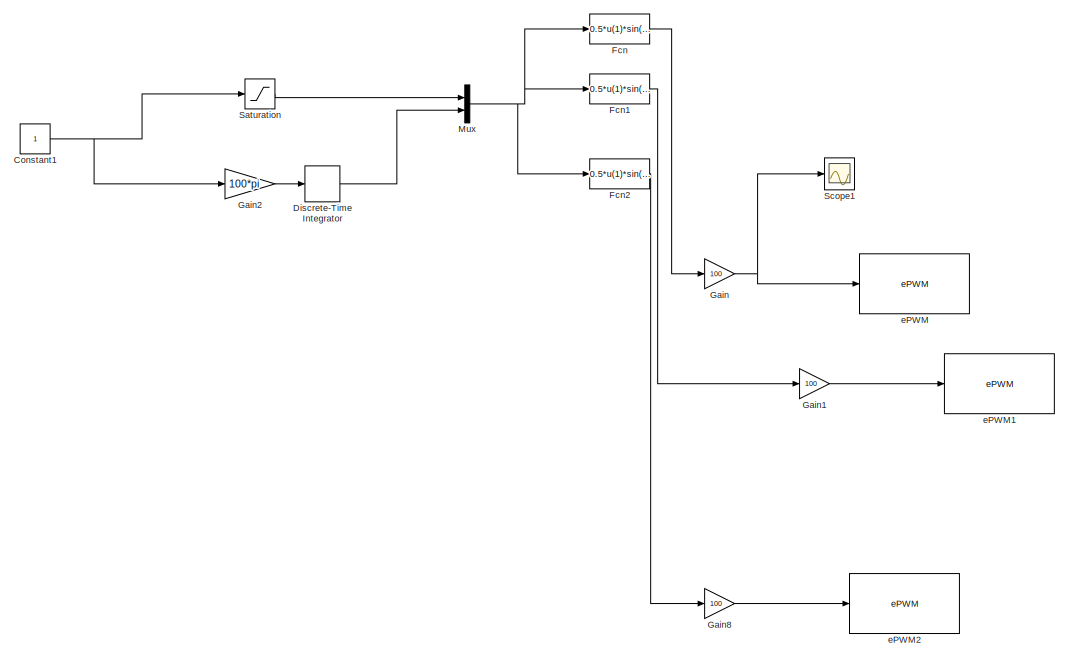
[diagram: root canvas - part 1/4, top center region]
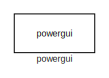
[diagram: root canvas - part 2/4, top right region]
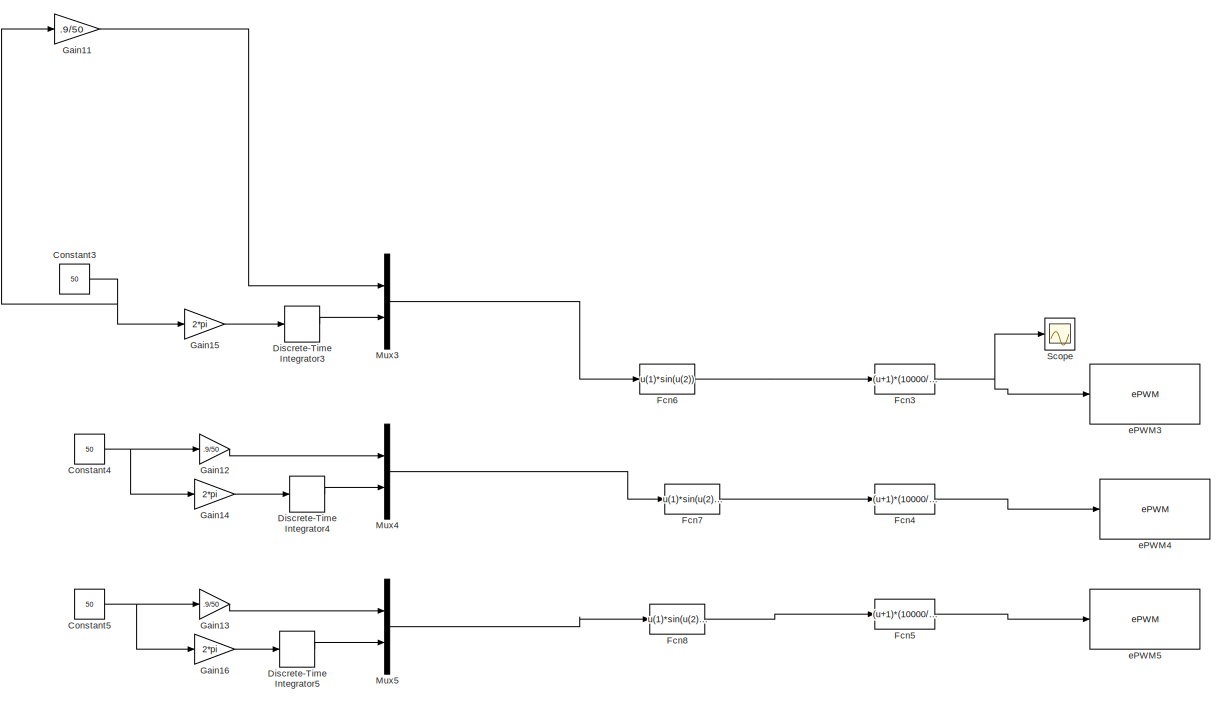
[diagram: root canvas - part 3/4, bottom right region]
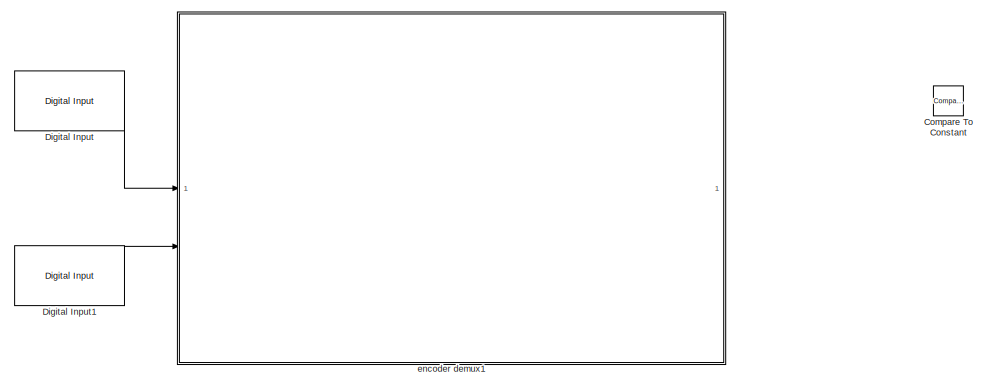
[diagram: root canvas - part 4/4, bottom left region]
MODEL slx_fc16426a96dc
KIND model
CONFIG AbsTol = auto
CONFIG EnableMultiTasking = on
CONFIG FixedStep = 1e-6
CONFIG MaxStep = 5e-5
CONFIG MinStep = auto
CONFIG RelTol = 1e-5
CONFIG SampleTimeConstraint = Unconstrained
CONFIG SolverName = FixedStepDiscrete
CONFIG StartTime = 0.0
CONFIG StopTime = Inf
BLOCK [Reference] Compare To Constant  REF=simulink/Logic and Bit
Operations/Compare
To Constant
  Commented = on
  SourceBlock = simulink/Logic and Bit\nOperations/Compare\nTo Constant
  SourceType = Compare To Constant
BLOCK [Constant] Constant1
BLOCK [Constant] Constant3
  Commented = on
  Value = 50
BLOCK [Constant] Constant4
  Commented = on
  Value = 50
BLOCK [Constant] Constant5
  Commented = on
  Value = 50
BLOCK [Reference] Digital Input  REF=c2837xDlib/Digital Input
  Commented = on
  SourceBlock = c2837xDlib/Digital Input
  SourceType = F2837x GPIO Digital Input
  UserDataPersistent = on
BLOCK [Reference] Digital Input1  REF=c2837xDlib/Digital Input
  Commented = on
  SourceBlock = c2837xDlib/Digital Input
  SourceType = F2837x GPIO Digital Input
  UserDataPersistent = on
BLOCK [DiscreteIntegrator] Discrete-Time Integrator
  ICPrevOutput = DiscIntNeverNeededParam
  ICPrevScaledInput = DiscIntNeverNeededParam
  InitialConditionSetting = Auto
  SampleTime = -1
BLOCK [DiscreteIntegrator] Discrete-Time Integrator3
  Commented = on
  ICPrevOutput = DiscIntNeverNeededParam
  ICPrevScaledInput = DiscIntNeverNeededParam
  InitialConditionSetting = Auto
  SampleTime = -1
BLOCK [DiscreteIntegrator] Discrete-Time Integrator4
  Commented = on
  ICPrevOutput = DiscIntNeverNeededParam
  ICPrevScaledInput = DiscIntNeverNeededParam
  InitialConditionSetting = Auto
  SampleTime = -1
BLOCK [DiscreteIntegrator] Discrete-Time Integrator5
  Commented = on
  ICPrevOutput = DiscIntNeverNeededParam
  ICPrevScaledInput = DiscIntNeverNeededParam
  InitialConditionSetting = Auto
  SampleTime = -1
BLOCK [Fcn] Fcn
  Expr = 0.5*u(1)*sin(u(2))+0.5
BLOCK [Fcn] Fcn1
  Expr = 0.5*u(1)*sin(u(2)+(2*pi/3))+0.5
BLOCK [Fcn] Fcn2
  Expr = 0.5*u(1)*sin(u(2)-(2*pi/3))+0.5
BLOCK [Fcn] Fcn3
  Commented = on
  Expr = (u+1)*(10000/2)
BLOCK [Fcn] Fcn4
  Commented = on
  Expr = (u+1)*(10000/2)
BLOCK [Fcn] Fcn5
  Commented = on
  Expr = (u+1)*(10000/2)
BLOCK [Fcn] Fcn6
  Commented = on
  Expr = u(1)*sin(u(2))
BLOCK [Fcn] Fcn7
  Commented = on
  Expr = u(1)*sin(u(2)-(2*pi/3))
BLOCK [Fcn] Fcn8
  Commented = on
  Expr = u(1)*sin(u(2)+(2*pi/3))
BLOCK [Gain] Gain
  Gain = 100
BLOCK [Gain] Gain1
  Gain = 100
BLOCK [Gain] Gain11
  Commented = on
  Gain = .9/50
BLOCK [Gain] Gain12
  Commented = on
  Gain = .9/50
BLOCK [Gain] Gain13
  Commented = on
  Gain = .9/50
BLOCK [Gain] Gain14
  Commented = on
  Gain = 2*pi
BLOCK [Gain] Gain15
  Commented = on
  Gain = 2*pi
BLOCK [Gain] Gain16
  Commented = on
  Gain = 2*pi
BLOCK [Gain] Gain2
  Gain = 100*pi
BLOCK [Gain] Gain8
  Gain = 100
BLOCK [Mux] Mux
  DisplayOption = bar
  Inputs = 2
BLOCK [Mux] Mux3
  Commented = on
  DisplayOption = bar
  Inputs = 2
BLOCK [Mux] Mux4
  Commented = on
  DisplayOption = bar
  Inputs = 2
BLOCK [Mux] Mux5
  Commented = on
  DisplayOption = bar
  Inputs = 2
BLOCK [Saturate] Saturation
  LowerLimit = 0
  UpperLimit = 0.9
BLOCK [Scope] Scope
  Commented = on
  Floating = off
  NumInputPorts = 1
  ScopeSpecificationString = Simulink.scopes.TimeScopeBlockCfg('CurrentConfiguration', extmgr.ConfigurationSet(extmgr.Configuration('Core','General UI',true),extmgr.Configuration('Core','Source UI',true),extmgr.Configuration('Sources','WiredSimulink',true,'DataLoggingVariableName','ScopeData1'),extmgr.Configuration('Visuals','Time Domain',true,'SerializedDisplays',{struct('MinYLimReal','4973.47156','MaxYLimReal','5186.98352',...<+1528ch>
BLOCK [Scope] Scope1
  Floating = off
  NumInputPorts = 1
  ScopeSpecificationString = Simulink.scopes.TimeScopeBlockCfg('CurrentConfiguration', extmgr.ConfigurationSet(extmgr.Configuration('Core','General UI',true),extmgr.Configuration('Core','Source UI',true),extmgr.Configuration('Sources','WiredSimulink',true,'DataLoggingVariableName','ScopeData2'),extmgr.Configuration('Visuals','Time Domain',true,'SerializedDisplays',{struct('MinYLimReal','-12.5','MaxYLimReal','112.5','YLabelRea...<+1438ch>
BLOCK [Reference] ePWM  REF=c2802xlib/ePWM
  SourceBlock = c2802xlib/ePWM
  SourceType = ePWM Type 1-4
  UserDataPersistent = on
BLOCK [Reference] ePWM1  REF=c2802xlib/ePWM
  SourceBlock = c2802xlib/ePWM
  SourceType = ePWM Type 1-4
  UserDataPersistent = on
BLOCK [Reference] ePWM2  REF=c2802xlib/ePWM
  SourceBlock = c2802xlib/ePWM
  SourceType = ePWM Type 1-4
  UserDataPersistent = on
BLOCK [Reference] ePWM3  REF=c2802xlib/ePWM
  Commented = on
  LibrarySourceBlock = c2837xDlib/ePWM
  SourceBlock = c2802xlib/ePWM
  SourceType = ePWM Type 1-4
  UserDataPersistent = on
BLOCK [Reference] ePWM4  REF=c2802xlib/ePWM
  Commented = on
  LibrarySourceBlock = c2837xDlib/ePWM
  SourceBlock = c2802xlib/ePWM
  SourceType = ePWM Type 1-4
  UserDataPersistent = on
BLOCK [Reference] ePWM5  REF=c2802xlib/ePWM
  Commented = on
  LibrarySourceBlock = c2837xDlib/ePWM
  SourceBlock = c2802xlib/ePWM
  SourceType = ePWM Type 1-4
  UserDataPersistent = on
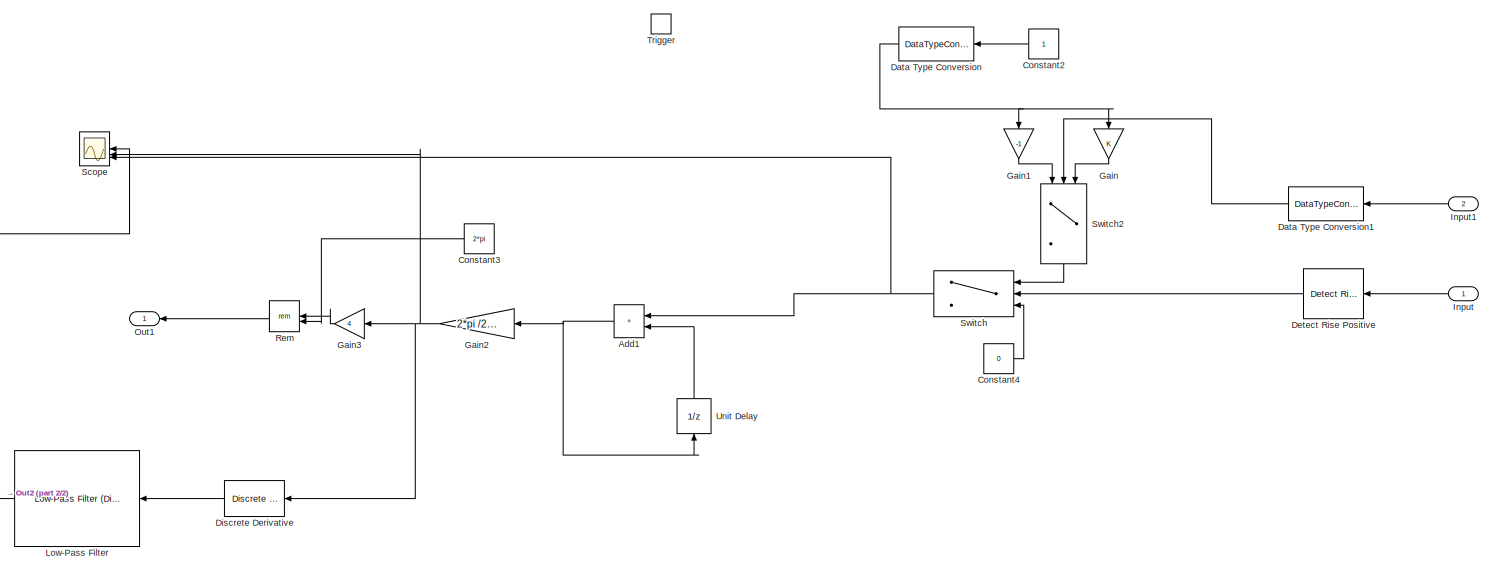
[diagram: encoder demux1 - part 1/2, most of the canvas]
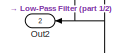
[diagram: encoder demux1 - part 2/2, bottom left region]
BLOCK [SubSystem] encoder demux1
  Commented = on
BLOCK [Sum] encoder demux1/Add1
  IconShape = rectangular
BLOCK [Constant] encoder demux1/Constant2
BLOCK [Constant] encoder demux1/Constant3
  Value = 2*pi
BLOCK [Constant] encoder demux1/Constant4
  Value = 0
BLOCK [DataTypeConversion] encoder demux1/Data Type Conversion
  RndMeth = Floor
  SaturateOnIntegerOverflow = off
BLOCK [DataTypeConversion] encoder demux1/Data Type Conversion1
  RndMeth = Floor
  SaturateOnIntegerOverflow = off
BLOCK [Reference] encoder demux1/Detect Rise Positive  REF=simulink/Logic and Bit
Operations/Detect Rise
Positive
  SourceBlock = simulink/Logic and Bit\nOperations/Detect Rise\nPositive
  SourceType = Detect Rise Positive
BLOCK [Reference] encoder demux1/Discrete Derivative  REF=simulink/Discrete/Discrete Derivative
  SourceBlock = simulink/Discrete/Discrete Derivative
  SourceType = Discrete Derivative
BLOCK [Gain] encoder demux1/Gain
  NameLocation = right
BLOCK [Gain] encoder demux1/Gain1
  Gain = -1
  NameLocation = right
BLOCK [Gain] encoder demux1/Gain2
  Gain = 2*pi /2000
BLOCK [Gain] encoder demux1/Gain3
  Gain = 4
BLOCK [Inport] encoder demux1/Input
BLOCK [Inport] encoder demux1/Input1
  Port = 2
BLOCK [Reference] encoder demux1/Low-Pass Filter   REF=eeGeneralControl/Low-Pass Filter
(Discrete or Continuous)
  SourceBlock = eeGeneralControl/Low-Pass Filter\n(Discrete or Continuous)
  SourceType = Low-Pass Filter (Discrete or Continuous)
BLOCK [Outport] encoder demux1/Out1
BLOCK [Outport] encoder demux1/Out2
  Port = 2
BLOCK [Math] encoder demux1/Rem
  Operator = rem
BLOCK [Scope] encoder demux1/Scope
  Floating = off
  NumInputPorts = 3
  ScopeSpecificationString = Simulink.scopes.TimeScopeBlockCfg('CurrentConfiguration', extmgr.ConfigurationSet(extmgr.Configuration('Core','General UI',true),extmgr.Configuration('Core','Source UI',true),extmgr.Configuration('Sources','WiredSimulink',true,'DataLoggingVariableName','ScopeData2'),extmgr.Configuration('Visuals','Time Domain',true,'SerializedDisplays',{struct('MinYLimReal','-9.05726','MaxYLimReal','1.00656','YLab...<+2849ch>
BLOCK [Switch] encoder demux1/Switch
  Criteria = u2 > Threshold
  InputSameDT = off
  SaturateOnIntegerOverflow = off
BLOCK [Switch] encoder demux1/Switch2
  Criteria = u2 > Threshold
  InputSameDT = off
  NameLocation = right
  SaturateOnIntegerOverflow = off
BLOCK [TriggerPort] encoder demux1/Trigger
  PortDimensions = 1
  StatesWhenEnabling = held
  TriggerType = function-call
  VariantControl = Variant
BLOCK [UnitDelay] encoder demux1/Unit Delay
  HasFrameUpgradeWarning = on
  NameLocation = right
  SampleTime = -1
BLOCK [Reference] powergui  REF=spspowerguiLib/powergui
  LibrarySourceBlock = sps_lib/powergui
  Priority = 1
  SourceBlock = spspowerguiLib/powergui
  SourceType = PSB option menu block
NET Constant1:1 -> Gain2:1, Saturation:1
NET Constant3:1 -> Gain11:1, Gain15:1
NET Constant4:1 -> Gain12:1, Gain14:1
NET Constant5:1 -> Gain13:1, Gain16:1
LINE Digital Input1:1 -> encoder demux1:2
LINE Digital Input:1 -> encoder demux1:1
LINE Discrete-Time Integrator3:1 -> Mux3:2
LINE Discrete-Time Integrator4:1 -> Mux4:2
LINE Discrete-Time Integrator5:1 -> Mux5:2
LINE Discrete-Time Integrator:1 -> Mux:2
LINE Fcn1:1 -> Gain1:1
LINE Fcn2:1 -> Gain8:1
NET Fcn3:1 -> Scope:1, ePWM3:1
LINE Fcn4:1 -> ePWM4:1
LINE Fcn5:1 -> ePWM5:1
LINE Fcn6:1 -> Fcn3:1
LINE Fcn7:1 -> Fcn4:1
LINE Fcn8:1 -> Fcn5:1
LINE Fcn:1 -> Gain:1
LINE Gain11:1 -> Mux3:1
LINE Gain12:1 -> Mux4:1
LINE Gain13:1 -> Mux5:1
LINE Gain14:1 -> Discrete-Time Integrator4:1
LINE Gain15:1 -> Discrete-Time Integrator3:1
LINE Gain16:1 -> Discrete-Time Integrator5:1
LINE Gain1:1 -> ePWM1:1
LINE Gain2:1 -> Discrete-Time Integrator:1
LINE Gain8:1 -> ePWM2:1
NET Gain:1 -> Scope1:1, ePWM:1
LINE Mux3:1 -> Fcn6:1
LINE Mux4:1 -> Fcn7:1
LINE Mux5:1 -> Fcn8:1
NET Mux:1 -> Fcn1:1, Fcn2:1, Fcn:1
LINE Saturation:1 -> Mux:1
NET encoder demux1/Add1:1 -> encoder demux1/Gain2:1, encoder demux1/Unit Delay:1
LINE encoder demux1/Constant2:1 -> encoder demux1/Data Type Conversion:1
LINE encoder demux1/Constant3:1 -> encoder demux1/Rem:2
LINE encoder demux1/Constant4:1 -> encoder demux1/Switch:3
LINE encoder demux1/Data Type Conversion1:1 -> encoder demux1/Switch2:2
NET encoder demux1/Data Type Conversion:1 -> encoder demux1/Gain1:1, encoder demux1/Gain:1
LINE encoder demux1/Detect Rise Positive:1 -> encoder demux1/Switch:2
LINE encoder demux1/Discrete Derivative:1 -> encoder demux1/Low-Pass Filter :1
LINE encoder demux1/Gain1:1 -> encoder demux1/Switch2:1
NET encoder demux1/Gain2:1 -> encoder demux1/Discrete Derivative:1, encoder demux1/Gain3:1, encoder demux1/Scope:2
LINE encoder demux1/Gain3:1 -> encoder demux1/Rem:1
LINE encoder demux1/Gain:1 -> encoder demux1/Switch2:3
LINE encoder demux1/Input1:1 -> encoder demux1/Data Type Conversion1:1
LINE encoder demux1/Input:1 -> encoder demux1/Detect Rise Positive:1
NET encoder demux1/Low-Pass Filter :1 -> encoder demux1/Out2:1, encoder demux1/Scope:1
LINE encoder demux1/Rem:1 -> encoder demux1/Out1:1
LINE encoder demux1/Switch2:1 -> encoder demux1/Switch:1
NET encoder demux1/Switch:1 -> encoder demux1/Add1:1, encoder demux1/Scope:3
LINE encoder demux1/Unit Delay:1 -> encoder demux1/Add1:2
note: NET lines group one-source signal fan-out (src -> all destinations, sorted); 1:1 wires keep LINE
